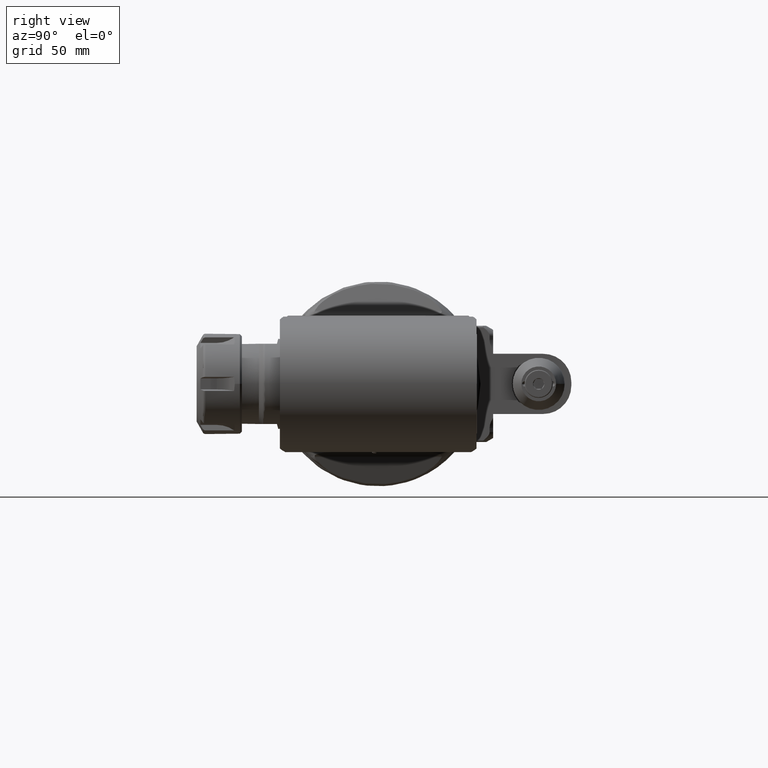
[diagram: clean part render]
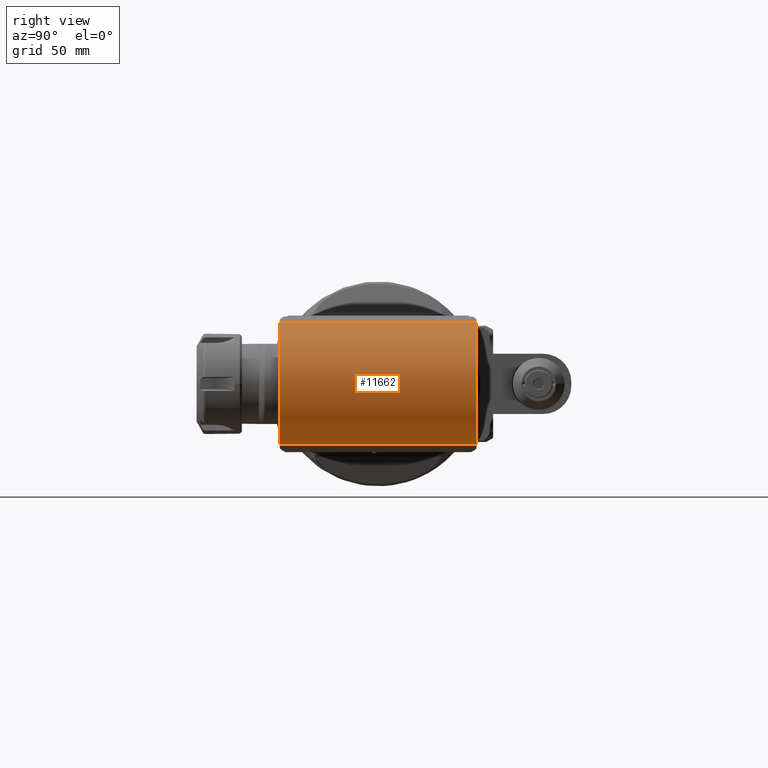
[diagram: same view with one face highlighted and labeled with its STEP entity id]
A machine part, right view. The second image highlights one B-rep face of the part: STEP entity #11662.
In plain terms, the highlighted cylindrical surface (partial cylindrical patch) has radius 31 mm, axis along (-0, 1, 0).
Its self-contained STEP definition (entity closure, byte-faithful):
#887=LINE('',#16683,#1744);
#890=LINE('',#16751,#1747);
#1744=VECTOR('',#13528,98.);
#1747=VECTOR('',#13547,98.);
#2580=CYLINDRICAL_SURFACE('',#12393,31.);
#2748=FACE_OUTER_BOUND('',#3403,.T.);
#3403=EDGE_LOOP('',(#7804,#7805,#7806,#7807));
#4130=CIRCLE('',#12391,31.);
#4132=CIRCLE('',#12394,31.);
#4629=VERTEX_POINT('',#16680);
#4630=VERTEX_POINT('',#16682);
#4635=VERTEX_POINT('',#16708);
#4646=VERTEX_POINT('',#16750);
#5916=EDGE_CURVE('',#4630,#4629,#887,.T.);
#5924=EDGE_CURVE('',#4630,#4635,#4130,.T.);
#5936=EDGE_CURVE('',#4646,#4635,#890,.T.);
#5937=EDGE_CURVE('',#4646,#4629,#4132,.T.);
#7804=ORIENTED_EDGE('',*,*,#5936,.T.);
#7805=ORIENTED_EDGE('',*,*,#5924,.F.);
#7806=ORIENTED_EDGE('',*,*,#5916,.T.);
#7807=ORIENTED_EDGE('',*,*,#5937,.F.);
#11662=ADVANCED_FACE('',(#2748),#2580,.T.);
#12391=AXIS2_PLACEMENT_3D('',#16709,#13540,#13541);
#12393=AXIS2_PLACEMENT_3D('',#16749,#13545,#13546);
#12394=AXIS2_PLACEMENT_3D('',#16752,#13548,#13549);
#13528=DIRECTION('',(0.,1.,0.));
#13540=DIRECTION('center_axis',(0.,-1.,0.));
#13541=DIRECTION('ref_axis',(0.207911690816993,0.,-0.978147600733968));
#13545=DIRECTION('center_axis',(0.,1.,0.));
#13546=DIRECTION('ref_axis',(1.,0.,0.));
#13547=DIRECTION('',(0.,-1.,0.));
#13548=DIRECTION('center_axis',(0.,1.,0.));
#13549=DIRECTION('ref_axis',(0.207911690816993,0.,0.978147600733968));
#16680=CARTESIAN_POINT('',(284.5083594153,49.,-30.32257562275));
#16682=CARTESIAN_POINT('',(284.5083594153,-49.,-30.32257562275));
#16683=CARTESIAN_POINT('',(284.5083594153,-49.,-30.32257562275));
#16708=CARTESIAN_POINT('',(284.5083594153,-49.,30.32257562275));
#16709=CARTESIAN_POINT('Origin',(278.063097,-49.,0.));
#16749=CARTESIAN_POINT('Origin',(278.063097,49.,0.));
#16750=CARTESIAN_POINT('',(284.5083594153,49.,30.32257562275));
#16751=CARTESIAN_POINT('',(284.5083594153,49.,30.32257562275));
#16752=CARTESIAN_POINT('Origin',(278.063097,49.,0.));